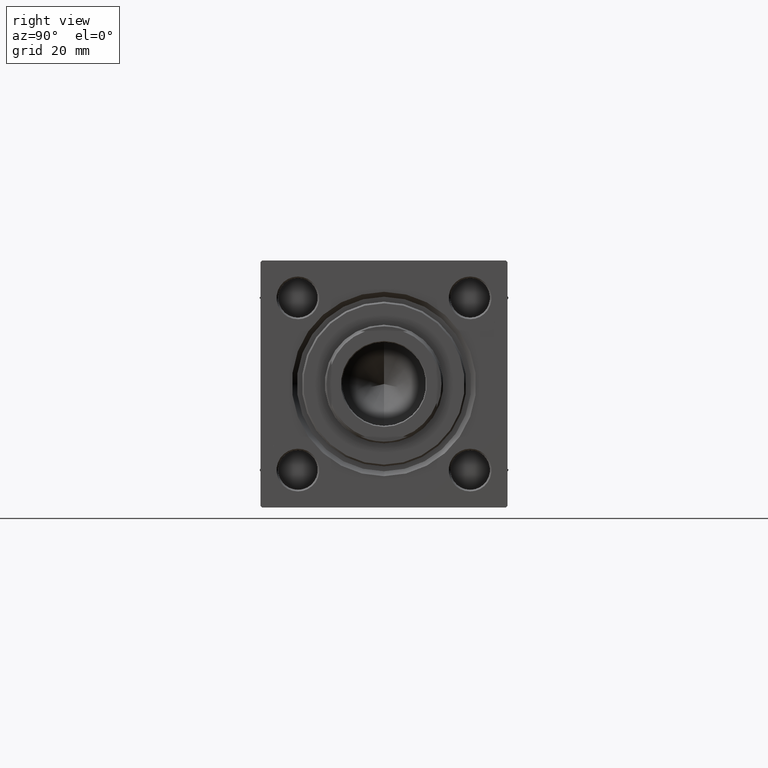
[diagram: clean part render]
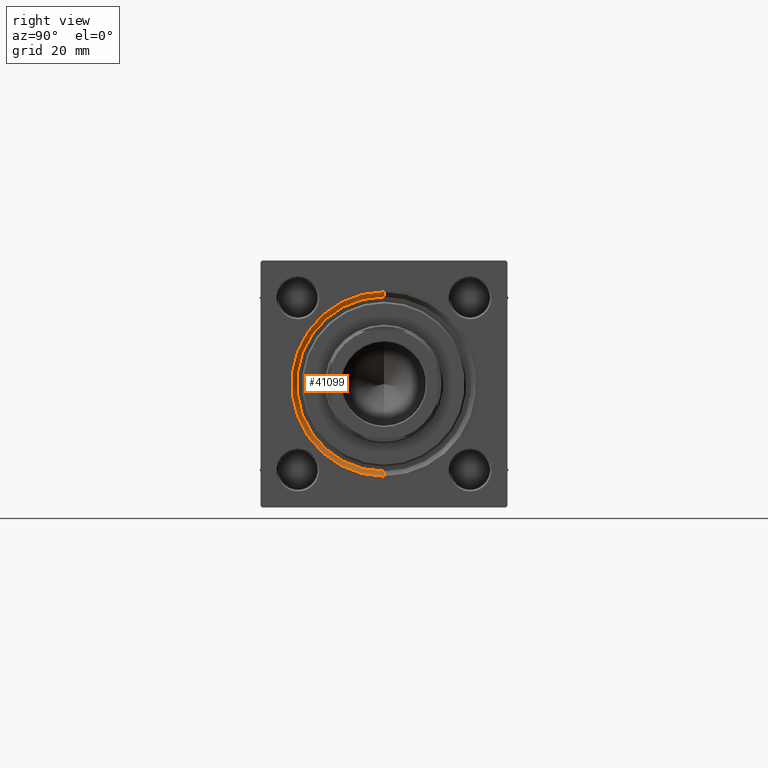
[diagram: same view with one face highlighted and labeled with its STEP entity id]
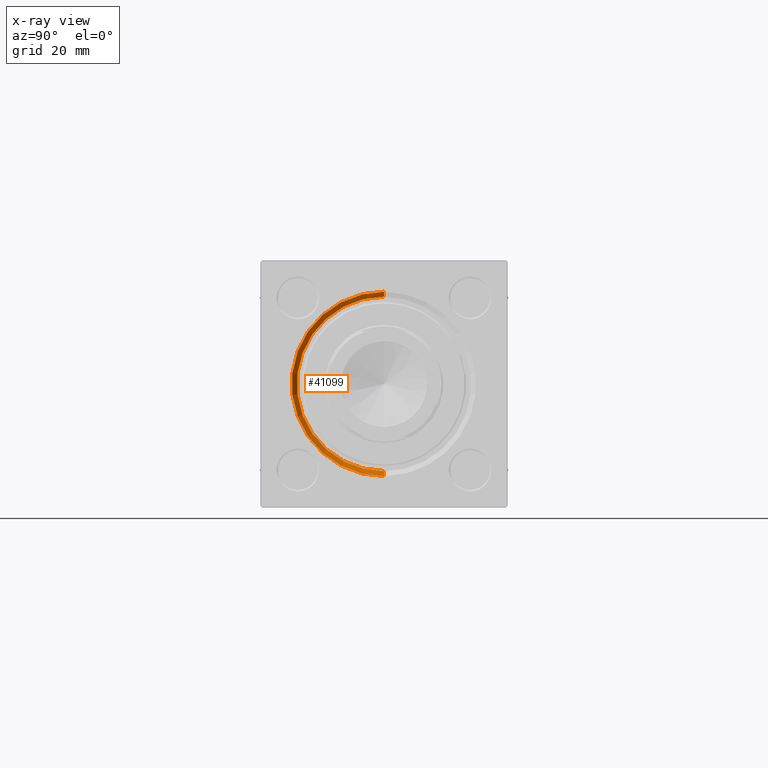
[diagram: x-ray of the same camera — body ghosted, the highlighted face saturated]
A machine part, right view. The second image highlights one B-rep face of the part: STEP entity #41099.
The next image is the same camera in x-ray: the body ghosted, the highlighted face saturated — about 0% of this face is hidden behind the body in this view.
In plain terms, the highlighted conical surface has half-angle 45 deg.
Its self-contained STEP definition (entity closure, byte-faithful):
#1382 = FACE_OUTER_BOUND ( 'NONE', #44977, .T. ) ;
#6019 = LINE ( 'NONE', #20726, #21695 ) ;
#7224 = CARTESIAN_POINT ( 'NONE',  ( 152.5000000000000568, 0.000000000000000000, -26.50000000000000355 ) ) ;
#10075 = AXIS2_PLACEMENT_3D ( 'NONE', #16879, #20681, #36906 ) ;
#10726 = VERTEX_POINT ( 'NONE', #28117 ) ;
#11271 = DIRECTION ( 'NONE',  ( -1.000000000000000000, -0.000000000000000000, 0.000000000000000000 ) ) ;
#16536 = CIRCLE ( 'NONE', #10075, 26.50000000000000355 ) ;
#16868 = CARTESIAN_POINT ( 'NONE',  ( 152.5000000000000568, 0.000000000000000000, 0.000000000000000000 ) ) ;
#16879 = CARTESIAN_POINT ( 'NONE',  ( 152.5000000000000568, 0.000000000000000000, 0.000000000000000000 ) ) ;
#16928 = DIRECTION ( 'NONE',  ( 0.7071067811865361374, 8.659560562355073374E-17, 0.7071067811865588970 ) ) ;
#16985 = VERTEX_POINT ( 'NONE', #20842 ) ;
#17737 = ORIENTED_EDGE ( 'NONE', *, *, #18774, .F. ) ;
#18774 = EDGE_CURVE ( 'NONE', #10726, #35857, #16536, .T. ) ;
#20681 = DIRECTION ( 'NONE',  ( 1.000000000000000000, 0.000000000000000000, 0.000000000000000000 ) ) ;
#20726 = CARTESIAN_POINT ( 'NONE',  ( 152.5000000000000568, 3.245314017740486554E-15, 26.50000000000000355 ) ) ;
#20842 = CARTESIAN_POINT ( 'NONE',  ( 154.0000000000000000, 3.429011037612588881E-15, 27.99999999999999645 ) ) ;
#21695 = VECTOR ( 'NONE', #16928, 1000.000000000000114 ) ;
#23436 = DIRECTION ( 'NONE',  ( 0.7071067811865361374, 0.000000000000000000, -0.7071067811865588970 ) ) ;
#26863 = CIRCLE ( 'NONE', #29304, 27.99999999999999645 ) ;
#26985 = LINE ( 'NONE', #7224, #34884 ) ;
#27989 = CARTESIAN_POINT ( 'NONE',  ( 152.5000000000000568, 0.000000000000000000, -26.50000000000000355 ) ) ;
#28117 = CARTESIAN_POINT ( 'NONE',  ( 152.5000000000000568, 3.245314017740486554E-15, 26.50000000000000355 ) ) ;
#28767 = VERTEX_POINT ( 'NONE', #38595 ) ;
#29304 = AXIS2_PLACEMENT_3D ( 'NONE', #41452, #11271, #38143 ) ;
#32335 = DIRECTION ( 'NONE',  ( 0.000000000000000000, 0.000000000000000000, -1.000000000000000000 ) ) ;
#32734 = EDGE_CURVE ( 'NONE', #10726, #16985, #6019, .T. ) ;
#34134 = AXIS2_PLACEMENT_3D ( 'NONE', #16868, #44005, #32335 ) ;
#34884 = VECTOR ( 'NONE', #23436, 1000.000000000000114 ) ;
#35857 = VERTEX_POINT ( 'NONE', #27989 ) ;
#36906 = DIRECTION ( 'NONE',  ( 0.000000000000000000, 0.000000000000000000, 1.000000000000000000 ) ) ;
#38143 = DIRECTION ( 'NONE',  ( 0.000000000000000000, 0.000000000000000000, 1.000000000000000000 ) ) ;
#38595 = CARTESIAN_POINT ( 'NONE',  ( 154.0000000000000000, 0.000000000000000000, -27.99999999999999645 ) ) ;
#40541 = ORIENTED_EDGE ( 'NONE', *, *, #41174, .F. ) ;
#41099 = ADVANCED_FACE ( 'NONE', ( #1382 ), #49542, .F. ) ;
#41174 = EDGE_CURVE ( 'NONE', #28767, #16985, #26863, .T. ) ;
#41452 = CARTESIAN_POINT ( 'NONE',  ( 154.0000000000000000, 0.000000000000000000, 0.000000000000000000 ) ) ;
#42412 = EDGE_CURVE ( 'NONE', #35857, #28767, #26985, .T. ) ;
#44005 = DIRECTION ( 'NONE',  ( 1.000000000000000000, 0.000000000000000000, 0.000000000000000000 ) ) ;
#44946 = ORIENTED_EDGE ( 'NONE', *, *, #32734, .T. ) ;
#44977 = EDGE_LOOP ( 'NONE', ( #17737, #44946, #40541, #46562 ) ) ;
#46562 = ORIENTED_EDGE ( 'NONE', *, *, #42412, .F. ) ;
#49542 = CONICAL_SURFACE ( 'NONE', #34134, 26.50000000000000355, 0.7853981633974644883 ) ;